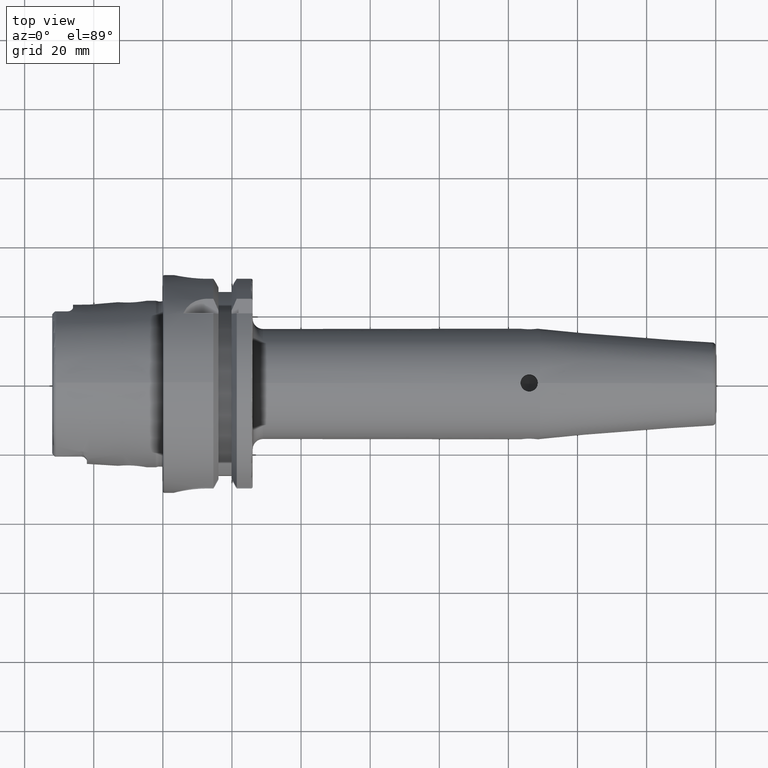
[diagram: clean part render]
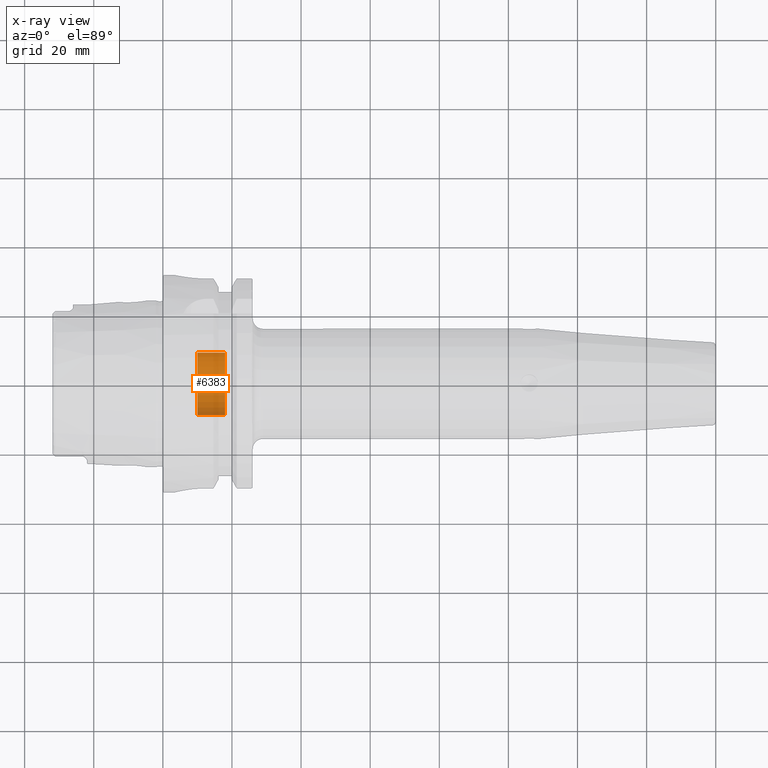
[diagram: x-ray — body ghosted, one internal face saturated and labeled with its STEP entity id]
A machine part, top view, then the same camera in x-ray: the body is ghosted and one INTERNAL B-rep face — a face not visible from any outside direction — is saturated and labeled: STEP entity #6383.
In plain terms, the highlighted cylindrical surface (edge-blend (fillet) strip) has radius 9 mm, axis along (-1, 0, 0).
Its self-contained STEP definition (entity closure, byte-faithful):
#6318=CARTESIAN_POINT('',(1.E1,0.E0,0.E0));
#6319=DIRECTION('',(1.E0,0.E0,0.E0));
#6320=DIRECTION('',(0.E0,-1.E0,0.E0));
#6321=AXIS2_PLACEMENT_3D('',#6318,#6319,#6320);
#6328=DIRECTION('',(1.E0,0.E0,0.E0));
#6329=VECTOR('',#6328,8.E0);
#6330=CARTESIAN_POINT('',(1.E1,-9.E0,0.E0));
#6331=LINE('',#6330,#6329);
#6332=DIRECTION('',(1.E0,0.E0,0.E0));
#6333=VECTOR('',#6332,8.E0);
#6334=CARTESIAN_POINT('',(1.E1,9.E0,0.E0));
#6335=LINE('',#6334,#6333);
#6341=CARTESIAN_POINT('',(1.8E1,0.E0,0.E0));
#6342=DIRECTION('',(-1.E0,0.E0,0.E0));
#6343=DIRECTION('',(0.E0,1.E0,0.E0));
#6344=AXIS2_PLACEMENT_3D('',#6341,#6342,#6343);
#6356=CARTESIAN_POINT('',(1.8E1,9.E0,0.E0));
#6357=CARTESIAN_POINT('',(1.8E1,-9.E0,0.E0));
#6358=VERTEX_POINT('',#6356);
#6359=VERTEX_POINT('',#6357);
#6360=CARTESIAN_POINT('',(1.E1,9.E0,0.E0));
#6361=CARTESIAN_POINT('',(1.E1,-9.E0,0.E0));
#6362=VERTEX_POINT('',#6360);
#6363=VERTEX_POINT('',#6361);
#6368=CARTESIAN_POINT('',(2.376268102482E1,0.E0,0.E0));
#6369=DIRECTION('',(-1.E0,0.E0,0.E0));
#6370=DIRECTION('',(0.E0,1.E0,0.E0));
#6371=AXIS2_PLACEMENT_3D('',#6368,#6369,#6370);
#6372=CYLINDRICAL_SURFACE('',#6371,9.E0);
#6374=ORIENTED_EDGE('',*,*,#6373,.T.);
#6376=ORIENTED_EDGE('',*,*,#6375,.T.);
#6378=ORIENTED_EDGE('',*,*,#6377,.T.);
#6380=ORIENTED_EDGE('',*,*,#6379,.F.);
#6381=EDGE_LOOP('',(#6374,#6376,#6378,#6380));
#6382=FACE_OUTER_BOUND('',#6381,.F.);
#6383=ADVANCED_FACE('',(#6382),#6372,.F.);
#6322=CIRCLE('',#6321,9.E0);
#6345=CIRCLE('',#6344,9.E0);
#6373=EDGE_CURVE('',#6363,#6362,#6322,.T.);
#6375=EDGE_CURVE('',#6362,#6358,#6335,.T.);
#6377=EDGE_CURVE('',#6358,#6359,#6345,.T.);
#6379=EDGE_CURVE('',#6363,#6359,#6331,.T.);